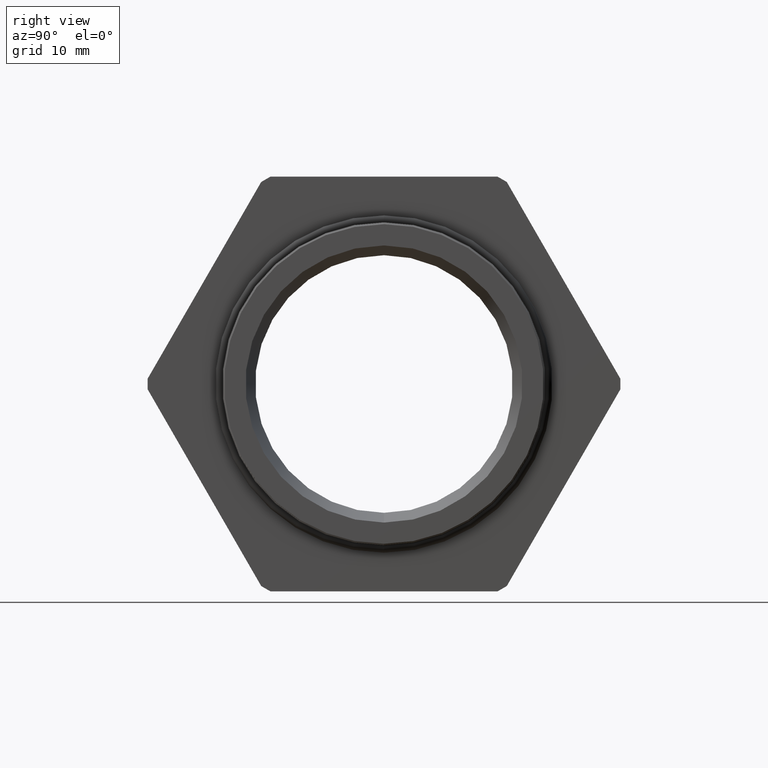
[diagram: clean part render]
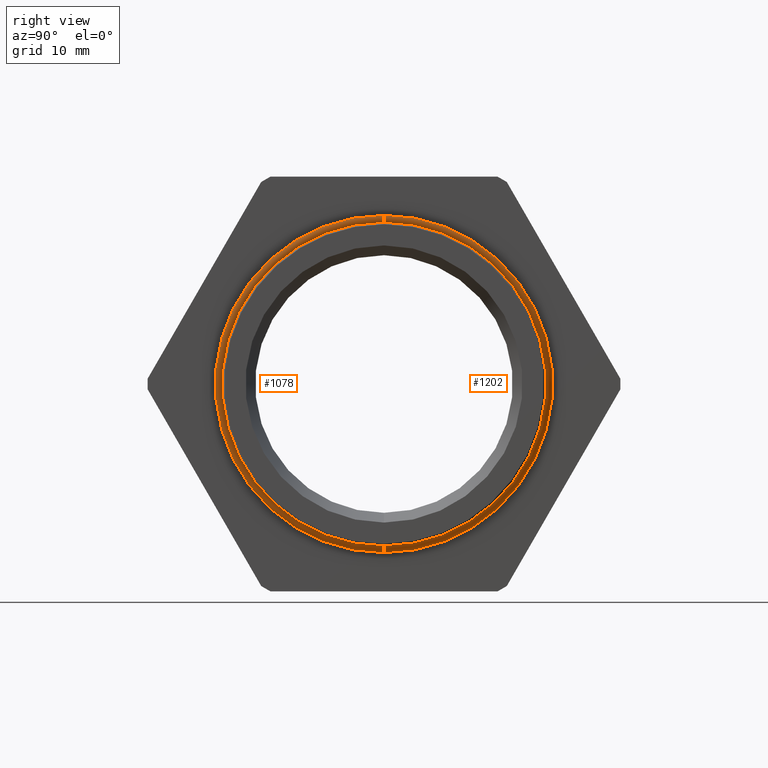
[diagram: same view with one multi-face feature highlighted, each face labeled with its STEP entity id]
A machine part, right view. The highlighted faces form ONE feature: a constant-radius fillet chain: 2 tangent blend faces with common blend radius 0.635 mm. The faces share edges in the B-rep.
Their STEP definitions:
[1] entity #1078 (Torus):
#670 = EDGE_CURVE ( 'NONE', #1206, #1146, #2714, .T. ) ;
#906 = EDGE_CURVE ( 'NONE', #1143, #1210, #3039, .T. ) ;
#1078 = ADVANCED_FACE ( 'NONE', ( #3317 ), #3314, .T. ) ;
#1079 = EDGE_LOOP ( 'NONE', ( #1080, #1081, #1082, #1083 ) ) ;
#1080 = ORIENTED_EDGE ( 'NONE', *, *, #1155, .F. ) ;
#1081 = ORIENTED_EDGE ( 'NONE', *, *, #670, .F. ) ;
#1082 = ORIENTED_EDGE ( 'NONE', *, *, #1182, .T. ) ;
#1083 = ORIENTED_EDGE ( 'NONE', *, *, #906, .T. ) ;
#1143 = VERTEX_POINT ( 'NONE', #3405 ) ;
#1146 = VERTEX_POINT ( 'NONE', #3404 ) ;
#1155 = EDGE_CURVE ( 'NONE', #1146, #1210, #3389, .T. ) ;
#1182 = EDGE_CURVE ( 'NONE', #1206, #1143, #3470, .T. ) ;
#1206 = VERTEX_POINT ( 'NONE', #3481 ) ;
#1210 = VERTEX_POINT ( 'NONE', #3545 ) ;
#2711 = DIRECTION ( 'NONE',  ( 0.0000000000000000000, 0.0000000000000000000, 1.000000000000000000 ) ) ;
#2712 = DIRECTION ( 'NONE',  ( -1.000000000000000000, 0.0000000000000000000, 0.0000000000000000000 ) ) ;
#2713 = AXIS2_PLACEMENT_3D ( 'NONE', #2720, #2712, #2711 ) ;
#2714 = CIRCLE ( 'NONE', #2713, 0.6534759511921007800 ) ;
#2720 = CARTESIAN_POINT ( 'NONE',  ( 0.4149999999999998700, 0.0000000000000000000, 0.0000000000000000000 ) ) ;
#3036 = DIRECTION ( 'NONE',  ( 0.0000000000000000000, 0.0000000000000000000, 1.000000000000000000 ) ) ;
#3037 = DIRECTION ( 'NONE',  ( -1.000000000000000000, 0.0000000000000000000, 0.0000000000000000000 ) ) ;
#3038 = AXIS2_PLACEMENT_3D ( 'NONE', #3045, #3037, #3036 ) ;
#3039 = CIRCLE ( 'NONE', #3038, 0.6190644173719352900 ) ;
#3045 = CARTESIAN_POINT ( 'NONE',  ( 0.4455820920326178400, 0.0000000000000000000, 0.0000000000000000000 ) ) ;
#3311 = DIRECTION ( 'NONE',  ( 0.0000000000000000000, 0.0000000000000000000, -1.000000000000000000 ) ) ;
#3312 = DIRECTION ( 'NONE',  ( 1.000000000000000000, 0.0000000000000000000, 0.0000000000000000000 ) ) ;
#3313 = AXIS2_PLACEMENT_3D ( 'NONE', #3316, #3312, #3311 ) ;
#3314 = TOROIDAL_SURFACE ( 'NONE', #3313, 0.6297905126274466700, 0.02500000000000011200 ) ;
#3316 = CARTESIAN_POINT ( 'NONE',  ( 0.4229999999999998800, 0.0000000000000000000, 0.0000000000000000000 ) ) ;
#3317 = FACE_OUTER_BOUND ( 'NONE', #1079, .T. ) ;
#3385 = DIRECTION ( 'NONE',  ( 0.0000000000000000000, 1.224646799147351000E-016, 1.000000000000000000 ) ) ;
#3386 = DIRECTION ( 'NONE',  ( 0.0000000000000000000, 1.000000000000000000, -1.224646799147353200E-016 ) ) ;
#3387 = CARTESIAN_POINT ( 'NONE',  ( 0.4229999999999998800, 7.712709354225732700E-017, 0.6297905126274466700 ) ) ;
#3388 = AXIS2_PLACEMENT_3D ( 'NONE', #3387, #3386, #3385 ) ;
#3389 = CIRCLE ( 'NONE', #3388, 0.02500000000000014400 ) ;
#3404 = CARTESIAN_POINT ( 'NONE',  ( 0.4149999999999998700, 8.002772319471780800E-017, 0.6534759511921007800 ) ) ;
#3405 = CARTESIAN_POINT ( 'NONE',  ( 0.4455820920326178400, 7.581352572005616100E-017, -0.6190644173719352900 ) ) ;
#3466 = DIRECTION ( 'NONE',  ( 0.0000000000000000000, 0.0000000000000000000, -1.000000000000000000 ) ) ;
#3467 = DIRECTION ( 'NONE',  ( 0.0000000000000000000, -1.000000000000000000, 0.0000000000000000000 ) ) ;
#3468 = CARTESIAN_POINT ( 'NONE',  ( 0.4229999999999998800, 0.0000000000000000000, -0.6297905126274466700 ) ) ;
#3469 = AXIS2_PLACEMENT_3D ( 'NONE', #3468, #3467, #3466 ) ;
#3470 = CIRCLE ( 'NONE', #3469, 0.02500000000000014400 ) ;
#3481 = CARTESIAN_POINT ( 'NONE',  ( 0.4149999999999998700, 0.0000000000000000000, -0.6534759511921007800 ) ) ;
#3545 = CARTESIAN_POINT ( 'NONE',  ( 0.4455820920326178400, 0.0000000000000000000, 0.6190644173719352900 ) ) ;
[2] entity #1202 (Torus):
#1141 = ORIENTED_EDGE ( 'NONE', *, *, #1142, .T. ) ;
#1142 = EDGE_CURVE ( 'NONE', #1210, #1143, #3409, .T. ) ;
#1143 = VERTEX_POINT ( 'NONE', #3405 ) ;
#1146 = VERTEX_POINT ( 'NONE', #3404 ) ;
#1154 = ORIENTED_EDGE ( 'NONE', *, *, #1155, .T. ) ;
#1155 = EDGE_CURVE ( 'NONE', #1146, #1210, #3389, .T. ) ;
#1181 = ORIENTED_EDGE ( 'NONE', *, *, #1182, .F. ) ;
#1182 = EDGE_CURVE ( 'NONE', #1206, #1143, #3470, .T. ) ;
#1202 = ADVANCED_FACE ( 'NONE', ( #3496 ), #3490, .T. ) ;
#1203 = EDGE_LOOP ( 'NONE', ( #1204, #1154, #1141, #1181 ) ) ;
#1204 = ORIENTED_EDGE ( 'NONE', *, *, #1205, .F. ) ;
#1205 = EDGE_CURVE ( 'NONE', #1146, #1206, #3486, .T. ) ;
#1206 = VERTEX_POINT ( 'NONE', #3481 ) ;
#1210 = VERTEX_POINT ( 'NONE', #3545 ) ;
#3385 = DIRECTION ( 'NONE',  ( 0.0000000000000000000, 1.224646799147351000E-016, 1.000000000000000000 ) ) ;
#3386 = DIRECTION ( 'NONE',  ( 0.0000000000000000000, 1.000000000000000000, -1.224646799147353200E-016 ) ) ;
#3387 = CARTESIAN_POINT ( 'NONE',  ( 0.4229999999999998800, 7.712709354225732700E-017, 0.6297905126274466700 ) ) ;
#3388 = AXIS2_PLACEMENT_3D ( 'NONE', #3387, #3386, #3385 ) ;
#3389 = CIRCLE ( 'NONE', #3388, 0.02500000000000014400 ) ;
#3404 = CARTESIAN_POINT ( 'NONE',  ( 0.4149999999999998700, 8.002772319471780800E-017, 0.6534759511921007800 ) ) ;
#3405 = CARTESIAN_POINT ( 'NONE',  ( 0.4455820920326178400, 7.581352572005616100E-017, -0.6190644173719352900 ) ) ;
#3406 = DIRECTION ( 'NONE',  ( 0.0000000000000000000, 0.0000000000000000000, 1.000000000000000000 ) ) ;
#3407 = DIRECTION ( 'NONE',  ( -1.000000000000000000, 0.0000000000000000000, 0.0000000000000000000 ) ) ;
#3408 = AXIS2_PLACEMENT_3D ( 'NONE', #3415, #3407, #3406 ) ;
#3409 = CIRCLE ( 'NONE', #3408, 0.6190644173719352900 ) ;
#3415 = CARTESIAN_POINT ( 'NONE',  ( 0.4455820920326178400, 0.0000000000000000000, 0.0000000000000000000 ) ) ;
#3466 = DIRECTION ( 'NONE',  ( 0.0000000000000000000, 0.0000000000000000000, -1.000000000000000000 ) ) ;
#3467 = DIRECTION ( 'NONE',  ( 0.0000000000000000000, -1.000000000000000000, 0.0000000000000000000 ) ) ;
#3468 = CARTESIAN_POINT ( 'NONE',  ( 0.4229999999999998800, 0.0000000000000000000, -0.6297905126274466700 ) ) ;
#3469 = AXIS2_PLACEMENT_3D ( 'NONE', #3468, #3467, #3466 ) ;
#3470 = CIRCLE ( 'NONE', #3469, 0.02500000000000014400 ) ;
#3481 = CARTESIAN_POINT ( 'NONE',  ( 0.4149999999999998700, 0.0000000000000000000, -0.6534759511921007800 ) ) ;
#3482 = DIRECTION ( 'NONE',  ( 0.0000000000000000000, 0.0000000000000000000, 1.000000000000000000 ) ) ;
#3483 = DIRECTION ( 'NONE',  ( -1.000000000000000000, 0.0000000000000000000, 0.0000000000000000000 ) ) ;
#3484 = CARTESIAN_POINT ( 'NONE',  ( 0.4149999999999998700, 0.0000000000000000000, 0.0000000000000000000 ) ) ;
#3485 = AXIS2_PLACEMENT_3D ( 'NONE', #3484, #3483, #3482 ) ;
#3486 = CIRCLE ( 'NONE', #3485, 0.6534759511921007800 ) ;
#3487 = DIRECTION ( 'NONE',  ( 0.0000000000000000000, 0.0000000000000000000, -1.000000000000000000 ) ) ;
#3488 = DIRECTION ( 'NONE',  ( 1.000000000000000000, 0.0000000000000000000, 0.0000000000000000000 ) ) ;
#3489 = AXIS2_PLACEMENT_3D ( 'NONE', #3491, #3488, #3487 ) ;
#3490 = TOROIDAL_SURFACE ( 'NONE', #3489, 0.6297905126274466700, 0.02500000000000011200 ) ;
#3491 = CARTESIAN_POINT ( 'NONE',  ( 0.4229999999999998800, 0.0000000000000000000, 0.0000000000000000000 ) ) ;
#3496 = FACE_OUTER_BOUND ( 'NONE', #1203, .T. ) ;
#3545 = CARTESIAN_POINT ( 'NONE',  ( 0.4455820920326178400, 0.0000000000000000000, 0.6190644173719352900 ) ) ;